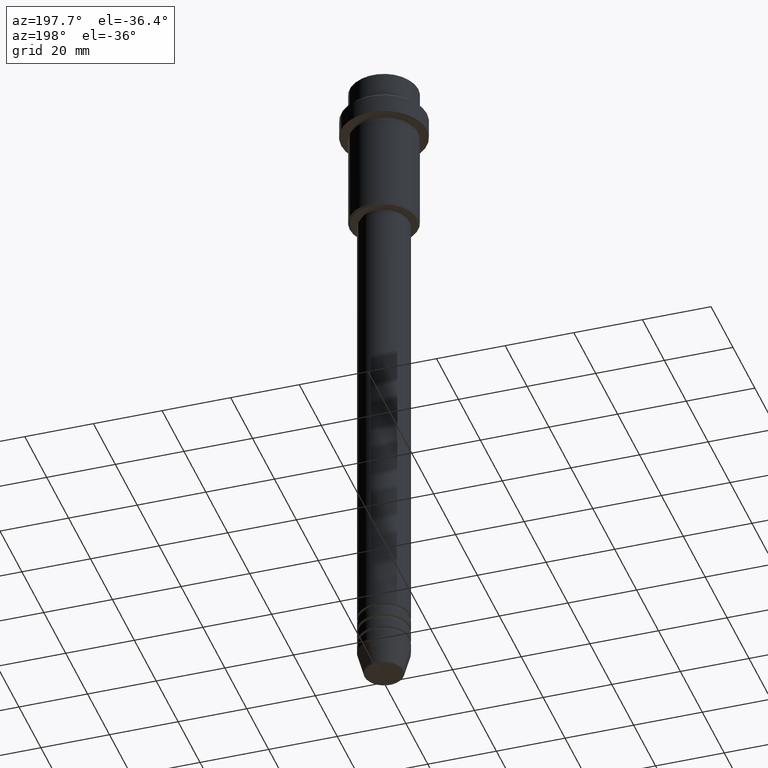
[diagram: clean part render]
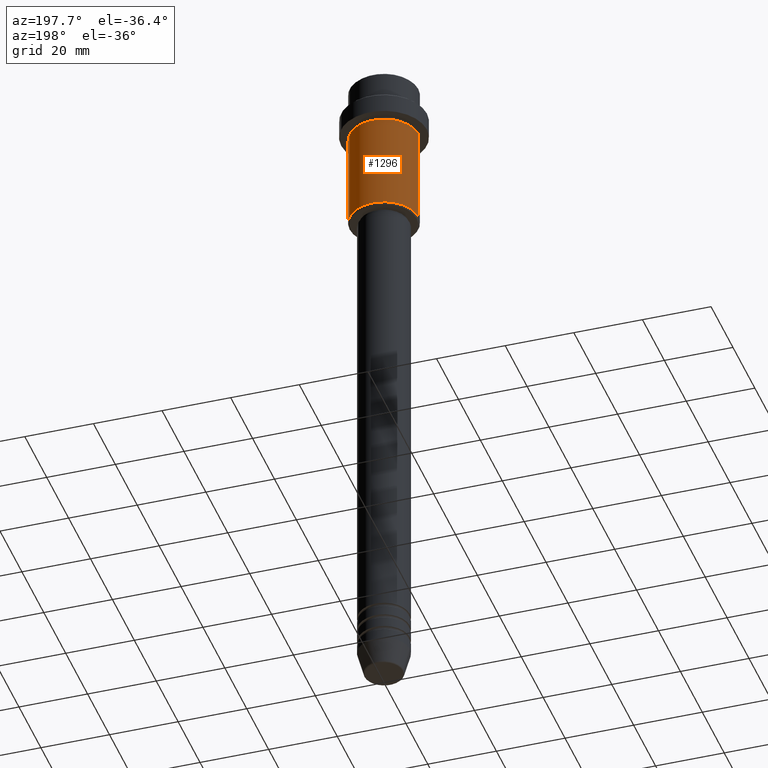
[diagram: same view with one face highlighted and labeled with its STEP entity id]
A machine part, auxiliary view. The second image highlights one B-rep face of the part: STEP entity #1296.
In plain terms, the highlighted cylindrical surface (edge-blend (fillet) strip) has radius 10 mm, axis along (-0, -0, 1).
Its self-contained STEP definition (entity closure, byte-faithful):
#58 = AXIS2_PLACEMENT_3D ( 'NONE', #510, #818, #409 ) ;
#66 = DIRECTION ( 'NONE',  ( -1.000000000000000000, 0.000000000000000000, 0.000000000000000000 ) ) ;
#166 = ORIENTED_EDGE ( 'NONE', *, *, #811, .T. ) ;
#208 = ORIENTED_EDGE ( 'NONE', *, *, #864, .T. ) ;
#246 = ORIENTED_EDGE ( 'NONE', *, *, #395, .F. ) ;
#282 = VECTOR ( 'NONE', #450, 1000.000000000000000 ) ;
#366 = CARTESIAN_POINT ( 'NONE',  ( -9.999999999999998224, 1.224646799147353059E-15, 0.000000000000000000 ) ) ;
#371 = CYLINDRICAL_SURFACE ( 'NONE', #777, 9.999999999999998224 ) ;
#395 = EDGE_CURVE ( 'NONE', #519, #584, #550, .T. ) ;
#409 = DIRECTION ( 'NONE',  ( 1.000000000000000000, 0.000000000000000000, 0.000000000000000000 ) ) ;
#450 = DIRECTION ( 'NONE',  ( -0.000000000000000000, -0.000000000000000000, 1.000000000000000000 ) ) ;
#510 = CARTESIAN_POINT ( 'NONE',  ( 0.000000000000000000, 0.000000000000000000, -16.00000000000000000 ) ) ;
#519 = VERTEX_POINT ( 'NONE', #940 ) ;
#526 = VERTEX_POINT ( 'NONE', #1071 ) ;
#533 = CARTESIAN_POINT ( 'NONE',  ( 9.999999999999998224, 0.000000000000000000, -16.00000000000000000 ) ) ;
#537 = CARTESIAN_POINT ( 'NONE',  ( 9.999999999999998224, 0.000000000000000000, 0.000000000000000000 ) ) ;
#550 = LINE ( 'NONE', #537, #282 ) ;
#584 = VERTEX_POINT ( 'NONE', #533 ) ;
#604 = CARTESIAN_POINT ( 'NONE',  ( 0.000000000000000000, 0.000000000000000000, -44.50000000000001421 ) ) ;
#689 = CIRCLE ( 'NONE', #1153, 9.999999999999998224 ) ;
#728 = VECTOR ( 'NONE', #1156, 1000.000000000000000 ) ;
#777 = AXIS2_PLACEMENT_3D ( 'NONE', #1038, #812, #1261 ) ;
#811 = EDGE_CURVE ( 'NONE', #526, #943, #1020, .T. ) ;
#812 = DIRECTION ( 'NONE',  ( -0.000000000000000000, -0.000000000000000000, 1.000000000000000000 ) ) ;
#818 = DIRECTION ( 'NONE',  ( -0.000000000000000000, -0.000000000000000000, 1.000000000000000000 ) ) ;
#864 = EDGE_CURVE ( 'NONE', #519, #526, #689, .T. ) ;
#887 = ORIENTED_EDGE ( 'NONE', *, *, #1057, .F. ) ;
#903 = FACE_OUTER_BOUND ( 'NONE', #1023, .T. ) ;
#912 = DIRECTION ( 'NONE',  ( -0.000000000000000000, -0.000000000000000000, 1.000000000000000000 ) ) ;
#940 = CARTESIAN_POINT ( 'NONE',  ( 9.999999999999998224, 0.000000000000000000, -44.50000000000001421 ) ) ;
#943 = VERTEX_POINT ( 'NONE', #1147 ) ;
#1020 = LINE ( 'NONE', #366, #728 ) ;
#1023 = EDGE_LOOP ( 'NONE', ( #208, #166, #887, #246 ) ) ;
#1038 = CARTESIAN_POINT ( 'NONE',  ( 0.000000000000000000, 0.000000000000000000, 0.000000000000000000 ) ) ;
#1057 = EDGE_CURVE ( 'NONE', #584, #943, #1288, .T. ) ;
#1071 = CARTESIAN_POINT ( 'NONE',  ( -9.999999999999998224, 1.224646799147353059E-15, -44.50000000000001421 ) ) ;
#1147 = CARTESIAN_POINT ( 'NONE',  ( -9.999999999999998224, 1.224646799147353059E-15, -16.00000000000000000 ) ) ;
#1153 = AXIS2_PLACEMENT_3D ( 'NONE', #604, #912, #66 ) ;
#1156 = DIRECTION ( 'NONE',  ( -0.000000000000000000, -0.000000000000000000, 1.000000000000000000 ) ) ;
#1261 = DIRECTION ( 'NONE',  ( 1.000000000000000000, 0.000000000000000000, 0.000000000000000000 ) ) ;
#1288 = CIRCLE ( 'NONE', #58, 9.999999999999998224 ) ;
#1296 = ADVANCED_FACE ( 'NONE', ( #903 ), #371, .T. ) ;